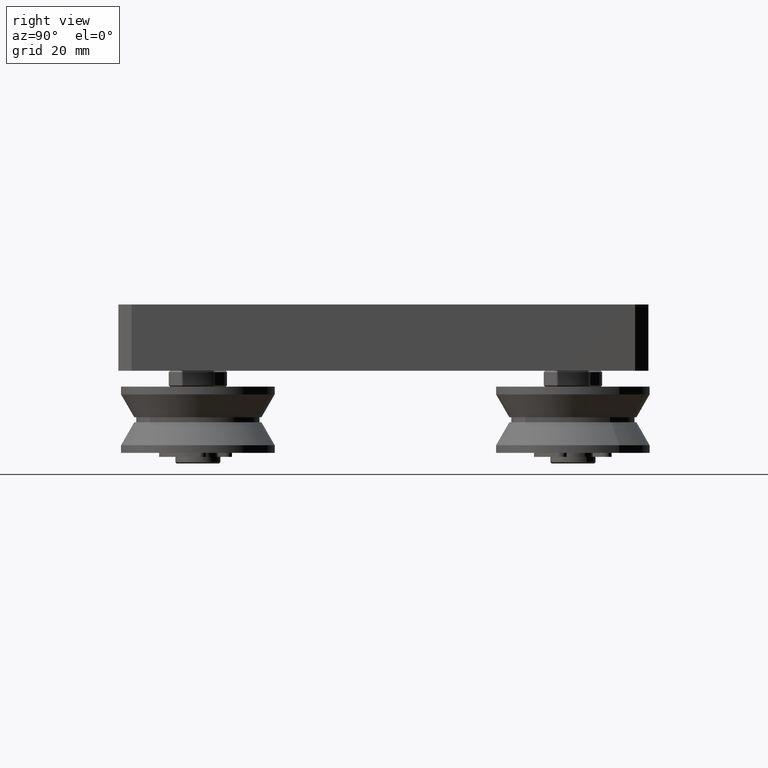
[diagram: clean part render]
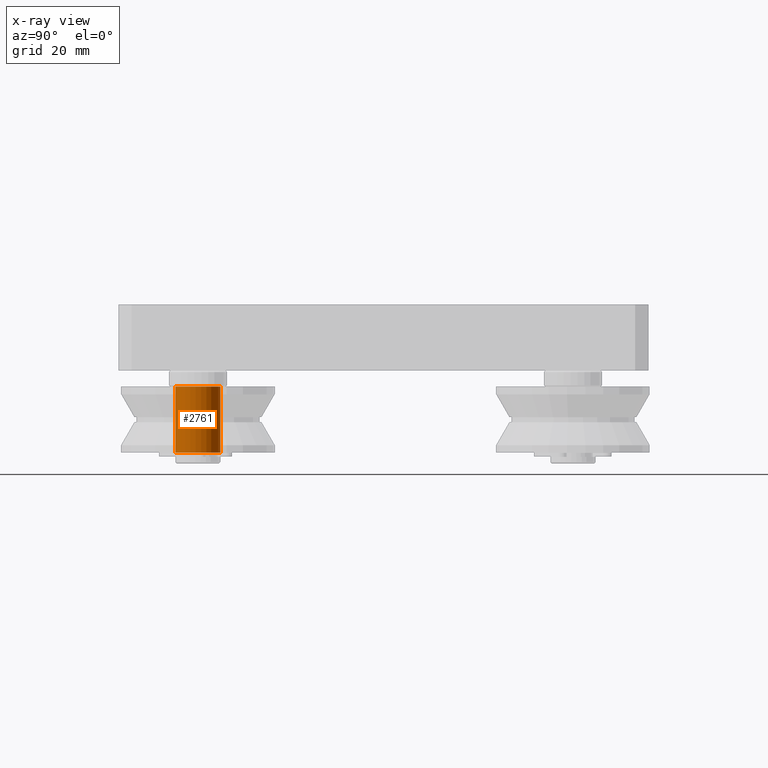
[diagram: x-ray — body ghosted, one internal face saturated and labeled with its STEP entity id]
A machine part, right view, then the same camera in x-ray: the body is ghosted and one INTERNAL B-rep face — a face not visible from any outside direction — is saturated and labeled: STEP entity #2761.
In plain terms, the highlighted cylindrical surface (bore or boss wall) has radius 8.5 mm, axis along (0, 0, 1).
Its self-contained STEP definition (entity closure, byte-faithful):
#172=CYLINDRICAL_SURFACE('',#3246,8.5);
#315=CIRCLE('',#3213,8.5);
#331=CIRCLE('',#3245,8.5);
#502=FACE_OUTER_BOUND('',#710,.T.);
#710=EDGE_LOOP('',(#2330,#2331,#2332,#2333));
#919=LINE('',#4821,#1134);
#1134=VECTOR('',#3998,8.5);
#1337=VERTEX_POINT('',#4761);
#1353=VERTEX_POINT('',#4818);
#1663=EDGE_CURVE('',#1337,#1337,#315,.T.);
#1688=EDGE_CURVE('',#1353,#1353,#331,.T.);
#1689=EDGE_CURVE('',#1353,#1337,#919,.T.);
#2330=ORIENTED_EDGE('',*,*,#1688,.T.);
#2331=ORIENTED_EDGE('',*,*,#1689,.T.);
#2332=ORIENTED_EDGE('',*,*,#1663,.F.);
#2333=ORIENTED_EDGE('',*,*,#1689,.F.);
#2761=ADVANCED_FACE('',(#502),#172,.F.);
#3213=AXIS2_PLACEMENT_3D('',#4762,#3921,#3922);
#3245=AXIS2_PLACEMENT_3D('',#4819,#3994,#3995);
#3246=AXIS2_PLACEMENT_3D('',#4820,#3996,#3997);
#3921=DIRECTION('center_axis',(1.,0.,0.));
#3922=DIRECTION('ref_axis',(0.,1.,0.));
#3994=DIRECTION('center_axis',(1.,0.,0.));
#3995=DIRECTION('ref_axis',(0.,1.,0.));
#3996=DIRECTION('center_axis',(1.,0.,0.));
#3997=DIRECTION('ref_axis',(0.,1.,0.));
#3998=DIRECTION('',(-1.,0.,0.));
#4761=CARTESIAN_POINT('',(-12.5,-8.5,-1.04094977927525E-15));
#4762=CARTESIAN_POINT('Origin',(-12.5,0.,0.));
#4818=CARTESIAN_POINT('',(12.5,-8.5,-1.04094977927525E-15));
#4819=CARTESIAN_POINT('Origin',(12.5,0.,0.));
#4820=CARTESIAN_POINT('Origin',(0.,0.,0.));
#4821=CARTESIAN_POINT('',(0.,-8.5,-1.04094977927525E-15));